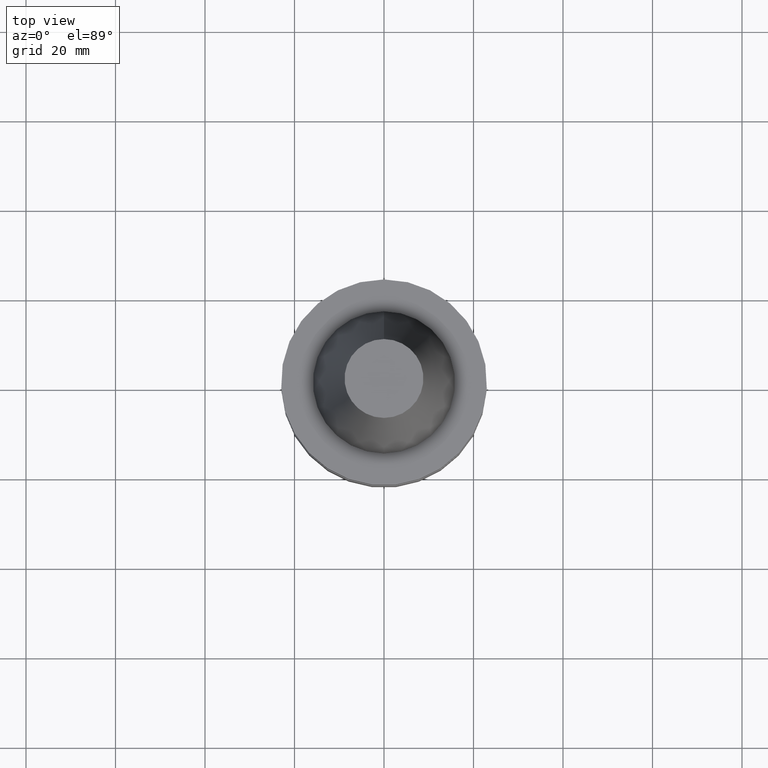
[diagram: clean part render]
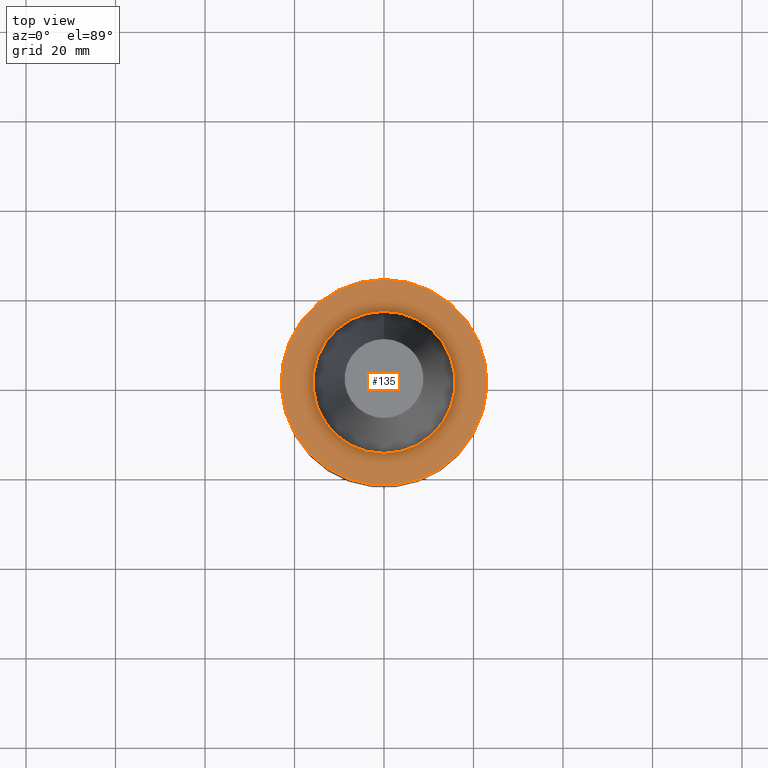
[diagram: same view with one face highlighted and labeled with its STEP entity id]
A machine part, top view. The second image highlights one B-rep face of the part: STEP entity #135.
In plain terms, the highlighted planar face has unit normal (-0, -0, 1).
Its self-contained STEP definition (entity closure, byte-faithful):
#69=EDGE_CURVE('Unnamed[1]',#172,#172,#173,.T.);
#103=EDGE_CURVE('Unnamed[1]',#226,#226,#227,.T.);
#135=ADVANCED_FACE('Unnamed[1]',(#275,#276),#277,.T.);
#172=VERTEX_POINT('',#311);
#173=CIRCLE('',#312,23.0);
#226=VERTEX_POINT('',#378);
#227=CIRCLE('',#379,15.875);
#275=FACE_OUTER_BOUND('',#438,.T.);
#276=FACE_BOUND('',#439,.T.);
#277=PLANE('',#440);
#311=CARTESIAN_POINT('',(6.12323399573674E-017,23.0,-0.999999999999997));
#312=AXIS2_PLACEMENT_3D('',#462,#463,#464);
#378=CARTESIAN_POINT('',(6.12323399573675E-017,15.875,-0.999999999999998));
#379=AXIS2_PLACEMENT_3D('',#524,#525,#526);
#438=EDGE_LOOP('',(#577));
#439=EDGE_LOOP('',(#578));
#440=AXIS2_PLACEMENT_3D('',#579,#580,#581);
#462=CARTESIAN_POINT('',(6.12323399573677E-017,1.22464679914735E-016,-1.0));
#463=DIRECTION('',(6.12323399573677E-017,1.22464679914735E-016,-1.0));
#464=DIRECTION('',(-1.23259516440783E-032,1.0,1.22464679914735E-016));
#524=CARTESIAN_POINT('',(6.12323399573677E-017,1.22464679914735E-016,-1.0));
#525=DIRECTION('',(6.12323399573677E-017,1.22464679914735E-016,-1.0));
#526=DIRECTION('',(-1.23259516440783E-032,1.0,1.22464679914735E-016));
#577=ORIENTED_EDGE('',*,*,#69,.F.);
#578=ORIENTED_EDGE('',*,*,#103,.T.);
#579=CARTESIAN_POINT('',(6.12323399573674E-017,19.4375,-0.999999999999998));
#580=DIRECTION('',(-6.12323399573677E-017,-1.22464679914735E-016,1.0));
#581=DIRECTION('',(1.23259516440783E-032,-1.0,-1.22464679914735E-016));